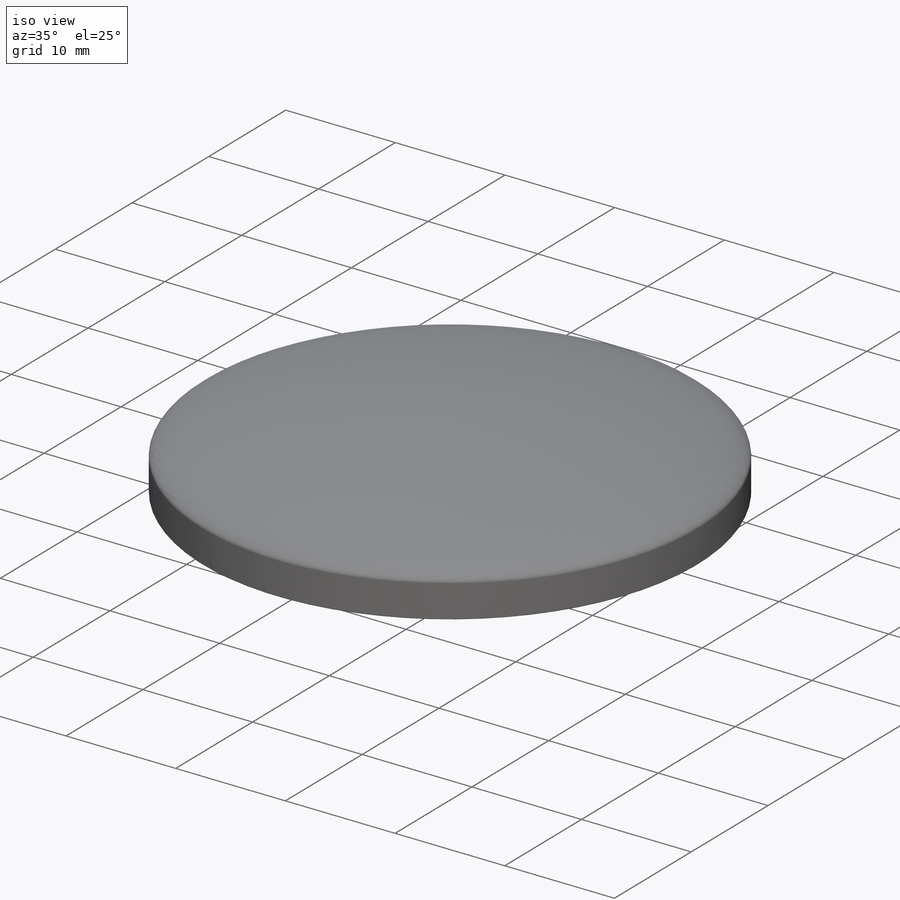
[diagram: iso view]
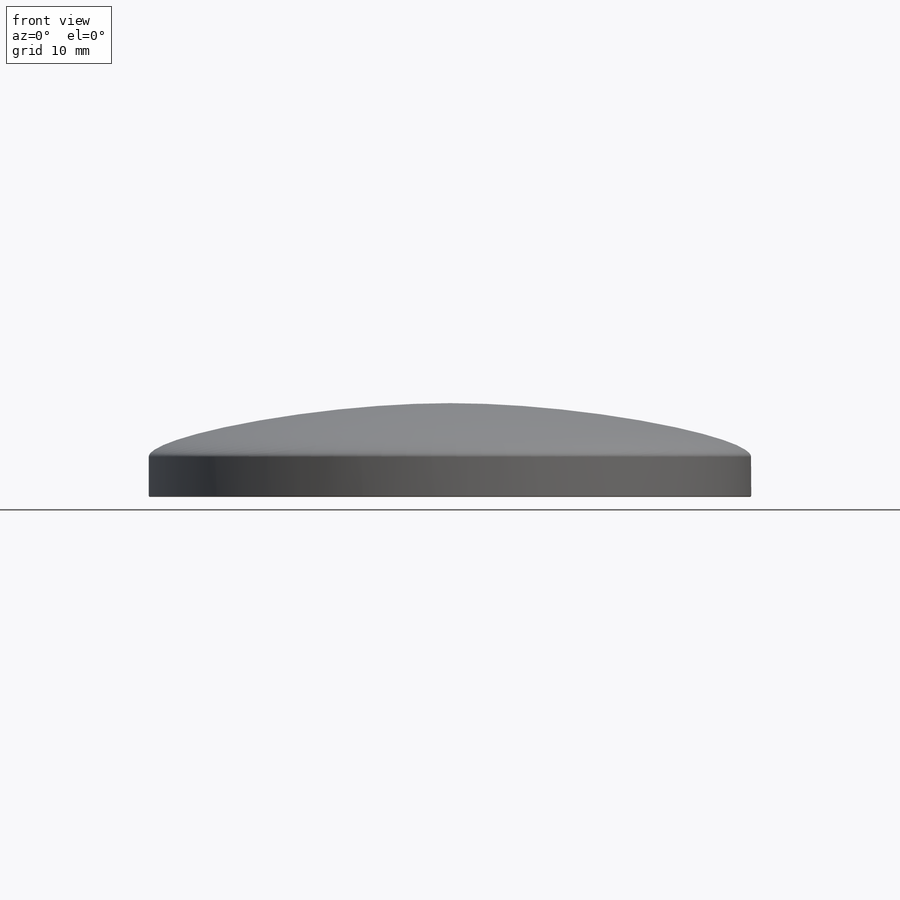
[diagram: front view]
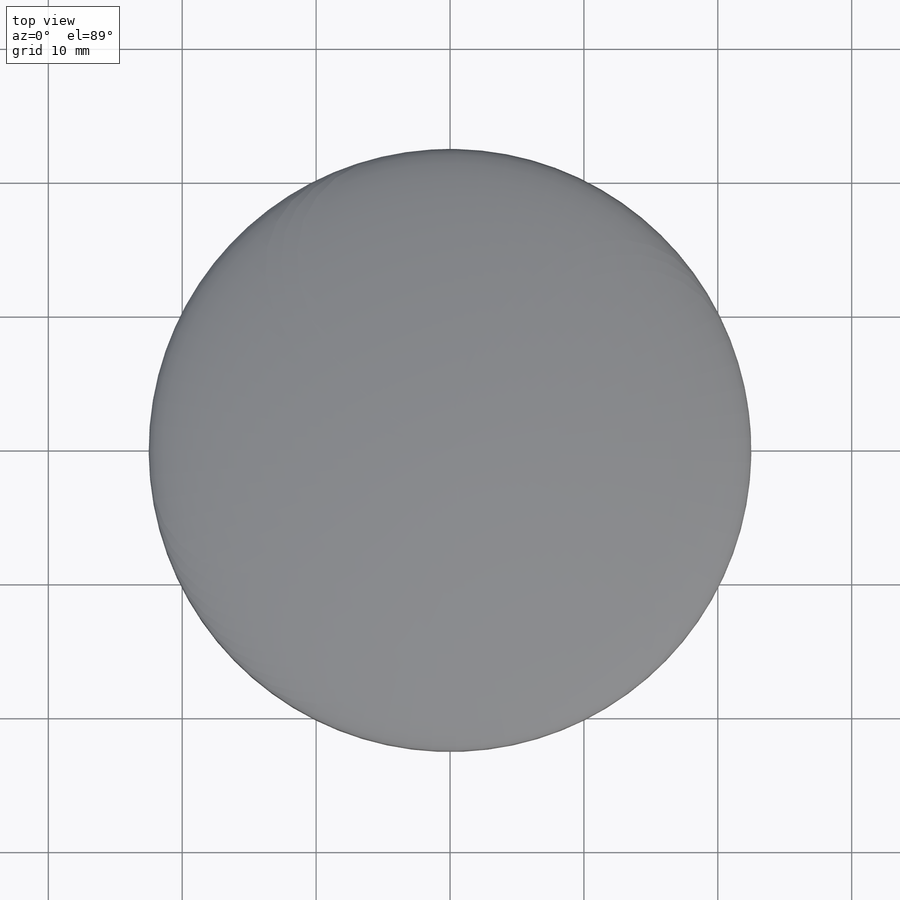
[diagram: top view]
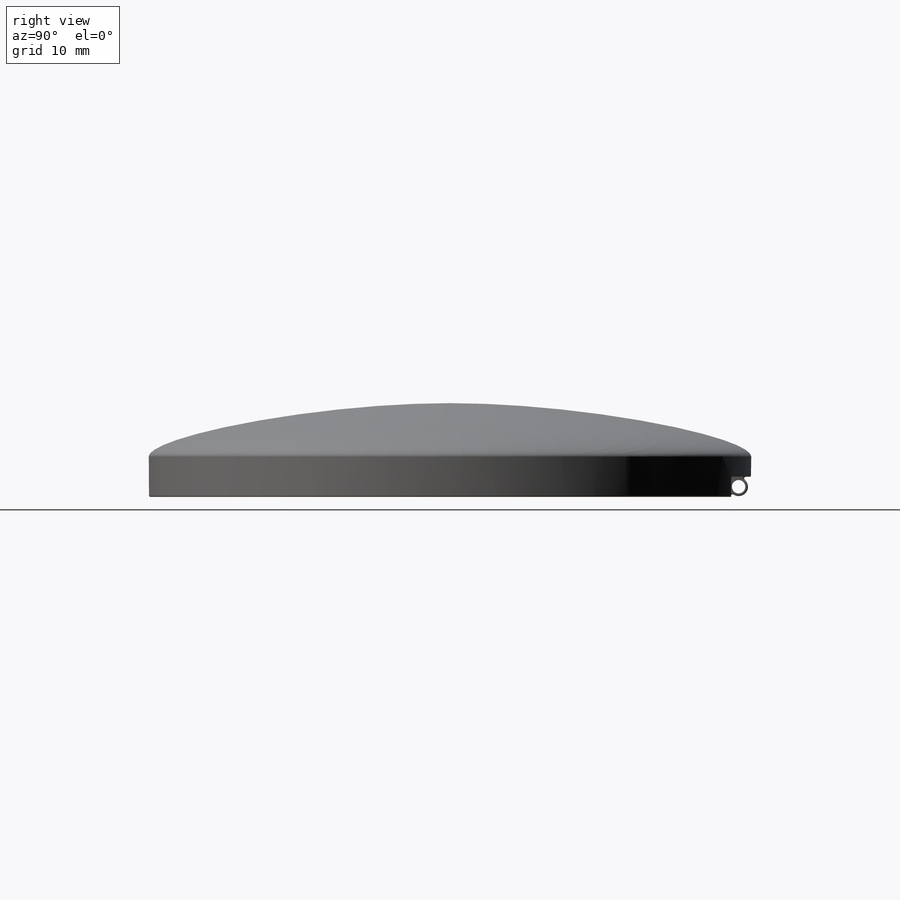
[diagram: right view]
SOLIDWORKS PART (.sldprt)
format: sldprt  version: not decoded by parser v0  size: 404,992 bytes
history: native  units: mm
features: fillet x7, sketch x5, extrude x2, material x1, revolve x1, shell x1, cut_extrude x1 (+11 scaffold rows collapsed)
feature tree (29):
  scaffold x11  (default folders/planes/origin — collapsed)
  material  "Material <not specified>"
  sketch  "Sketch2"  dims[D1=7.0mm]
  revolve  "Revolve2"  Angle=360deg
  shell  "Shell4"  Thickness=0.7mm
  sketch  "Sketch4"  dims[c1.D1=15.0mm c2.D1=0.7mm]
  sketch  "Sketch7"  dims[D1=21.0mm]
  cut_extrude  "Cut-Extrude3"  Depth=1.5mm
  sketch  "Sketch6"  dims[D1=1.4mm D2=1.0mm]
  extrude  "Boss-Extrude2"  Depth=4.8mm
  sketch  "Sketch9"
  extrude  "Boss-Extrude3"  Depth=4.8mm
  fillet  "Fillet4"  Radius=0.1mm
  fillet  "Fillet5"  Radius=0.1mm
  fillet  "Fillet6"  Radius=0.1mm
  fillet  "Fillet7"  Radius=0.1mm
  fillet  "Fillet8"  Radius=0.1mm
  fillet  "Fillet9"  Radius=0.2mm
  fillet  "Fillet10"  Radius=0.1mm
decode coverage: 16 of 17 modeling features carry decoded parameters
note: suppression state not decoded; provenance and decode notes live in map.json
